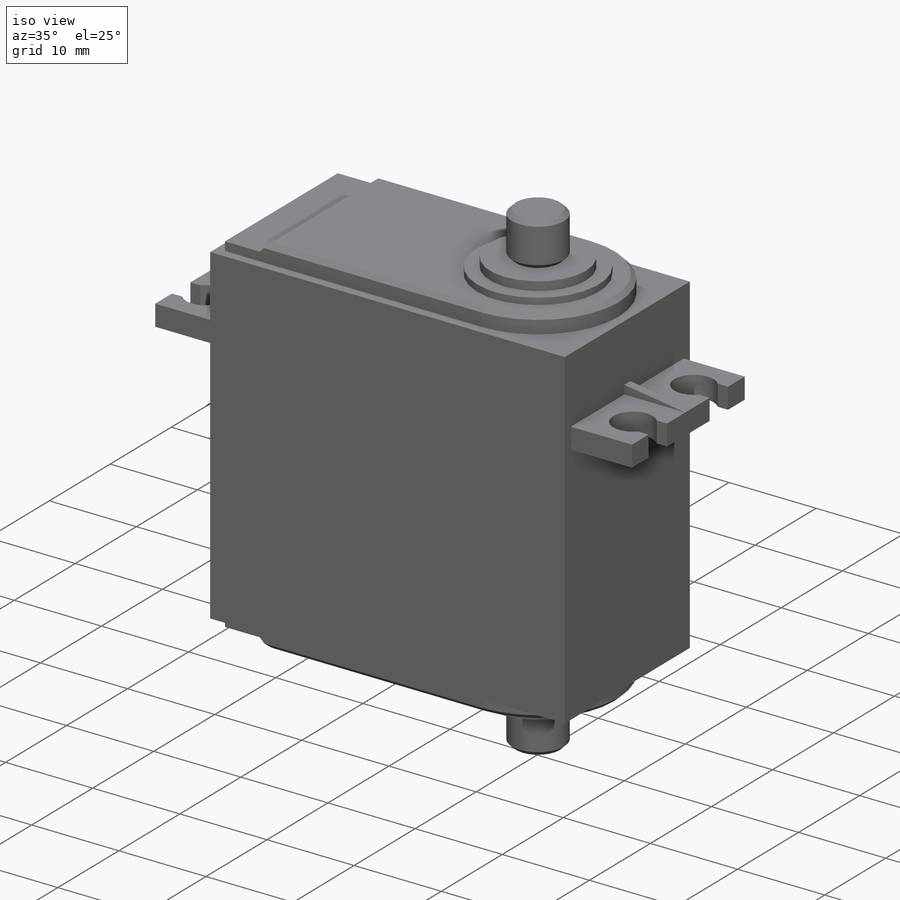
[diagram: iso view]
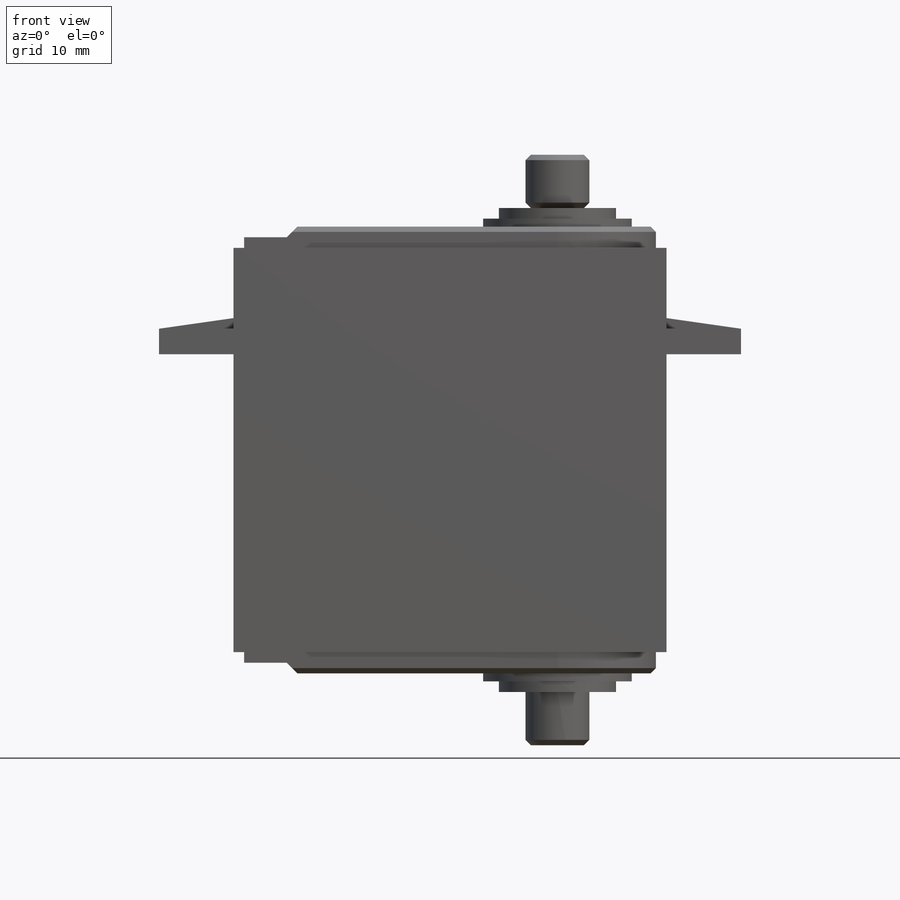
[diagram: front view]
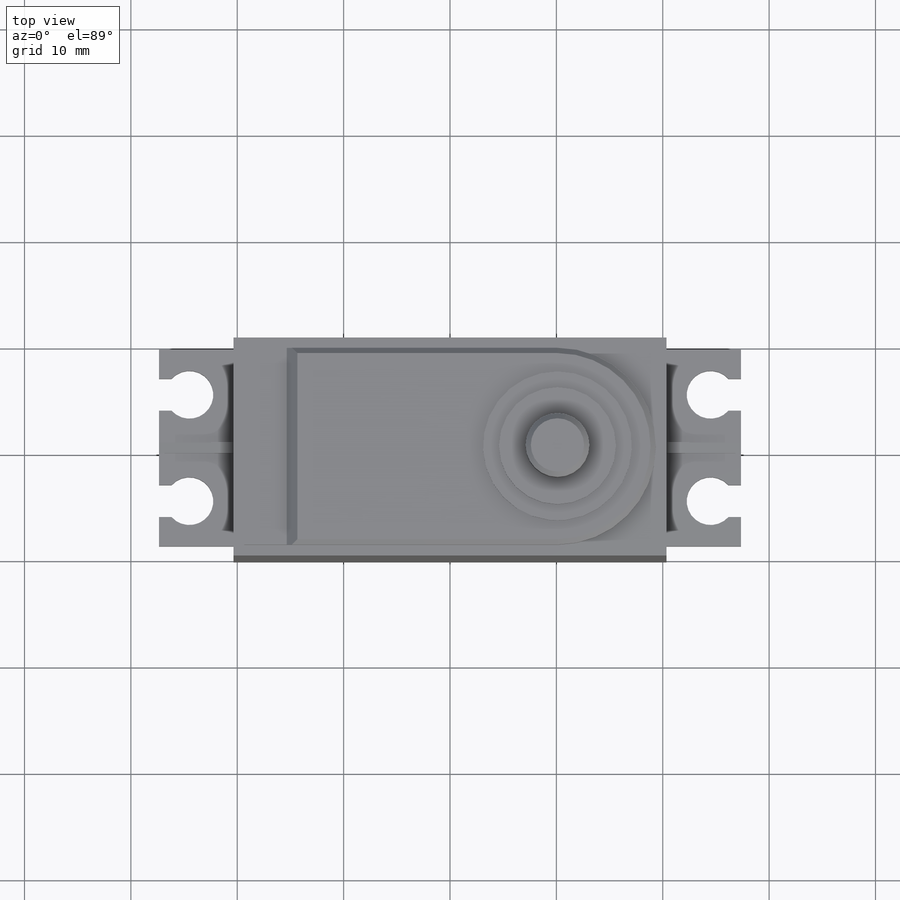
[diagram: top view]
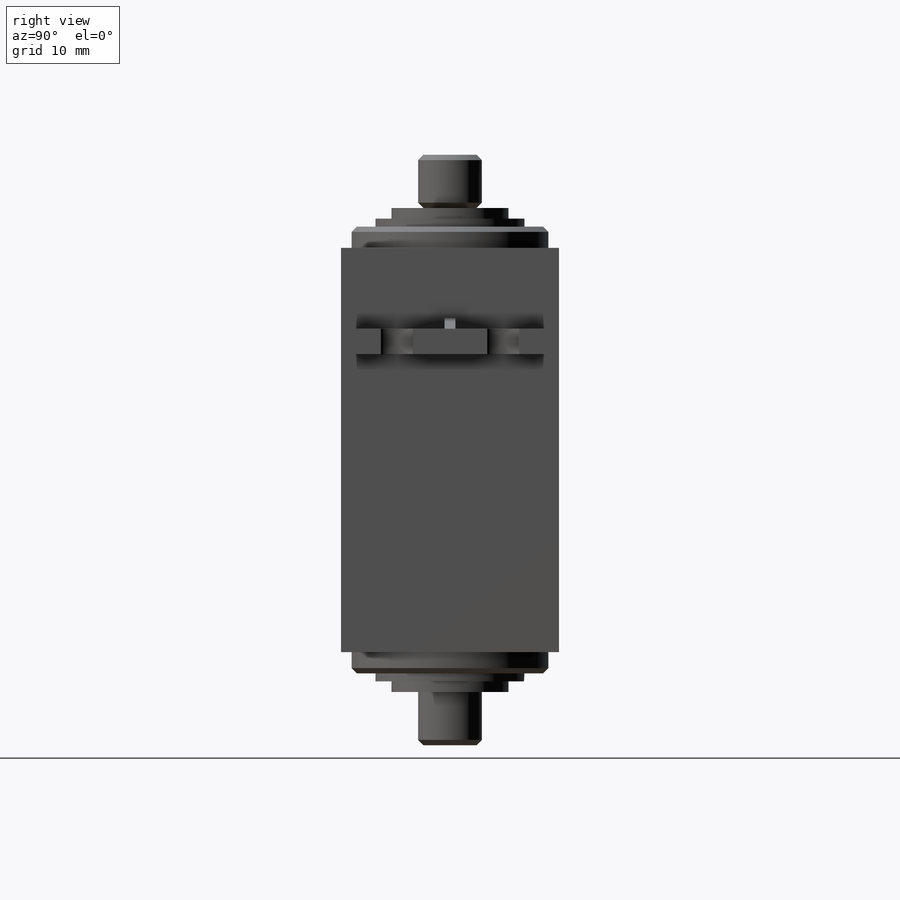
[diagram: right view]
SOLIDWORKS PART (.sldprt)
format: sldprt  version: not decoded by parser v0  size: 338,944 bytes
history: native  units: mm
features: sketch x10, extrude x7, plane x4, cut_extrude x2, material x1, chamfer x1, cut_revolve x1, mirror x1 (+10 scaffold rows collapsed)
feature tree (37):
  scaffold x10  (default folders/planes/origin — collapsed)
  material  "PE High Density"
  plane  "Alzado"
  plane  "Planta"
  plane  "Vista lateral"
  sketch  "Croquis1"  dims[D1=40.7mm D2=38.0mm]
  extrude  "Saliente-Extruir1"  Depth=20.5mm
  plane  "Plano1"  Offset=9.25mm
  sketch  "Croquis2"  dims[D1=2.4mm D2=7.0mm D3=28.0mm]
  extrude  "Saliente-Extruir2"  Depth=18.5mm
  sketch  "Croquis3"  dims[D1=1.0mm]
  extrude  "Saliente-Extruir3"  Depth=1mm
  sketch  "Croquis4"  dims[D3=4.5mm D1=49.0mm D2=10.0mm D4=3.0mm D5=2.85mm]
  cut_extrude  "Cortar-Extruir1"  [1 undecoded]
  sketch  "Croquis6"  dims[c1.D1=0.0mm c1.D2=1.0mm c2.D1=1.0mm]
  extrude  "Saliente-Extruir4"  Depth=2mm
  sketch  "Croquis9"  dims[c1.D1=5.0mm c1.D2=~3.536766mm c2.D2=45.0deg]
  cut_extrude  "Cortar-Extruir3"  [1 undecoded]
  sketch  "Croquis10"  dims[D1=14.0mm D2=1.5mm]
  extrude  "Saliente-Extruir5"  Depth=0.75mm
  sketch  "Croquis11"  dims[D1=0.0mm D2=1.5mm]
  extrude  "Saliente-Extruir6"  Depth=1mm
  sketch  "Croquis12"  dims[D1=6.0mm]
  extrude  "Saliente-Extruir7"  Depth=5mm
  chamfer  "Chaflán2"  Distance=0.5mm Angle=45deg
  sketch  "Croquis13"
  cut_revolve  "Cortar-Revolución1"  Angle=360deg
  mirror  "Mirror1"
decode coverage: 18 of 22 modeling features carry decoded parameters
note: ~ marks probable driven/reference dimensions
note: 2 parameter values undecoded
note: suppression state not decoded; provenance and decode notes live in map.json
